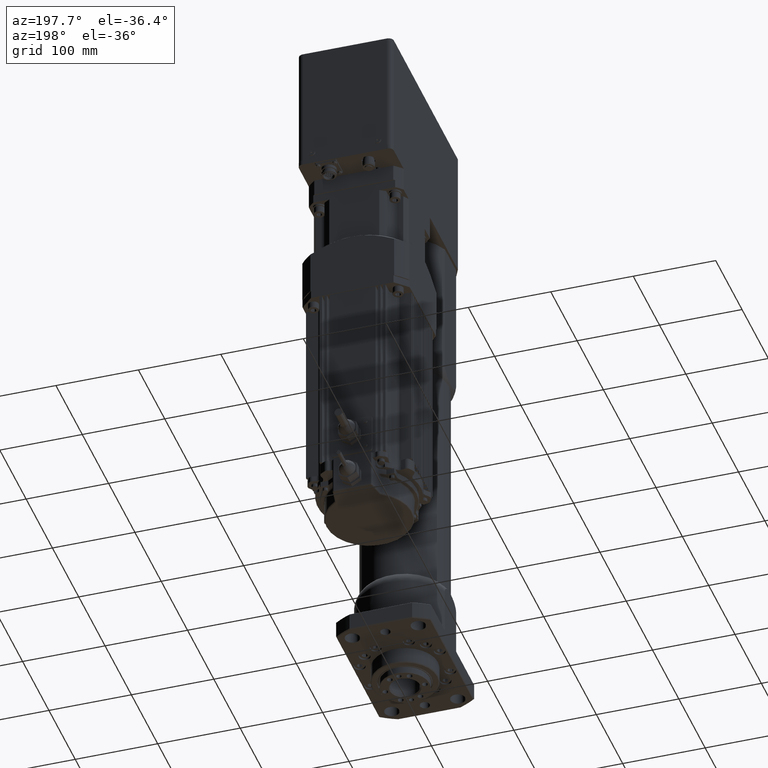
[diagram: clean part render]
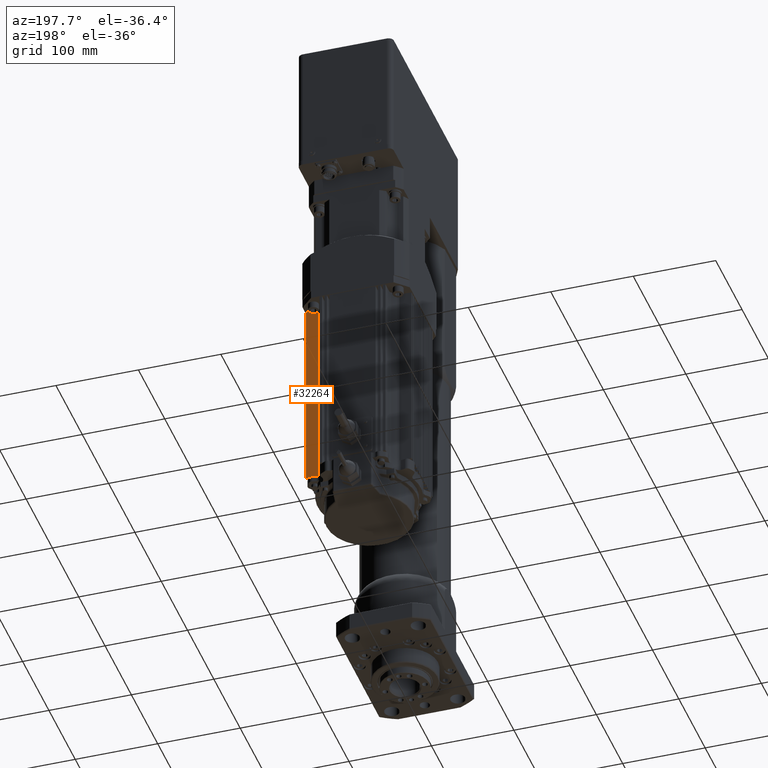
[diagram: same view with one face highlighted and labeled with its STEP entity id]
A machine part, auxiliary view. The second image highlights one B-rep face of the part: STEP entity #32264.
In plain terms, the highlighted planar face has unit normal (0, 1, -0).
Its self-contained STEP definition (entity closure, byte-faithful):
#3882=LINE('',#52908,#6276);
#3885=LINE('',#52917,#6279);
#4334=LINE('',#53952,#6728);
#4438=LINE('',#54532,#6832);
#4439=LINE('',#54533,#6833);
#4440=LINE('',#54534,#6834);
#6276=VECTOR('',#42047,10.);
#6279=VECTOR('',#42054,10.);
#6728=VECTOR('',#42995,10.);
#6832=VECTOR('',#43453,10.);
#6833=VECTOR('',#43454,10.);
#6834=VECTOR('',#43455,10.);
#8013=PLANE('',#35347);
#9525=FACE_OUTER_BOUND('',#11409,.T.);
#11409=EDGE_LOOP('',(#28243,#28244,#28245,#28246,#28247,#28248));
#15799=VERTEX_POINT('',#52905);
#15800=VERTEX_POINT('',#52907);
#15803=VERTEX_POINT('',#52914);
#15804=VERTEX_POINT('',#52916);
#16144=VERTEX_POINT('',#53950);
#16247=VERTEX_POINT('',#54531);
#19765=EDGE_CURVE('',#15799,#15800,#3882,.T.);
#19769=EDGE_CURVE('',#15803,#15804,#3885,.T.);
#20281=EDGE_CURVE('',#16144,#15804,#4334,.T.);
#20487=EDGE_CURVE('',#15799,#16247,#4438,.T.);
#20488=EDGE_CURVE('',#16144,#16247,#4439,.T.);
#20489=EDGE_CURVE('',#15800,#15803,#4440,.T.);
#28243=ORIENTED_EDGE('',*,*,#20487,.T.);
#28244=ORIENTED_EDGE('',*,*,#20488,.F.);
#28245=ORIENTED_EDGE('',*,*,#20281,.T.);
#28246=ORIENTED_EDGE('',*,*,#19769,.F.);
#28247=ORIENTED_EDGE('',*,*,#20489,.F.);
#28248=ORIENTED_EDGE('',*,*,#19765,.F.);
#32264=ADVANCED_FACE('',(#9525),#8013,.T.);
#35347=AXIS2_PLACEMENT_3D('',#54530,#43451,#43452);
#42047=DIRECTION('',(1.,-1.15361917488978E-12,-1.88225499827615E-16));
#42054=DIRECTION('',(1.,-1.15361917488978E-12,-1.88225499827615E-16));
#42995=DIRECTION('',(-1.88225499835395E-16,-6.74436261620895E-15,-1.));
#43451=DIRECTION('center_axis',(1.15361917488978E-12,1.,-6.74436261620917E-15));
#43452=DIRECTION('ref_axis',(1.,-1.15361917488978E-12,-1.88225499827615E-16));
#43453=DIRECTION('',(1.88225499835395E-16,6.74436261620895E-15,1.));
#43454=DIRECTION('',(-1.,1.15361917488978E-12,1.88225499827615E-16));
#43455=DIRECTION('',(1.,-1.15361917488978E-12,-1.88225499827615E-16));
#52905=CARTESIAN_POINT('',(49.3036080592632,176.000000000113,164.00000000001));
#52907=CARTESIAN_POINT('',(51.5853038311256,176.00000000011,164.00000000001));
#52908=CARTESIAN_POINT('',(48.0234317807926,176.000000000115,164.00000000001));
#52914=CARTESIAN_POINT('',(60.0892382968833,176.000000000101,164.00000000001));
#52916=CARTESIAN_POINT('',(64.0000000000462,176.000000000096,164.00000000001));
#52917=CARTESIAN_POINT('',(48.0234317807926,176.000000000115,164.00000000001));
#53950=CARTESIAN_POINT('',(64.0000000000463,176.000000000098,402.00000000001));
#53952=CARTESIAN_POINT('',(64.0000000000463,176.000000000098,402.00000000001));
#54530=CARTESIAN_POINT('Origin',(48.0234317807926,176.000000000116,402.00000000001));
#54531=CARTESIAN_POINT('',(49.3036080592632,176.000000000115,402.00000000001));
#54532=CARTESIAN_POINT('',(49.3036080592632,176.000000000115,402.00000000001));
#54533=CARTESIAN_POINT('',(24.0117158904194,176.000000000144,402.00000000001));
#54534=CARTESIAN_POINT('',(48.0234317807926,176.000000000115,164.00000000001));